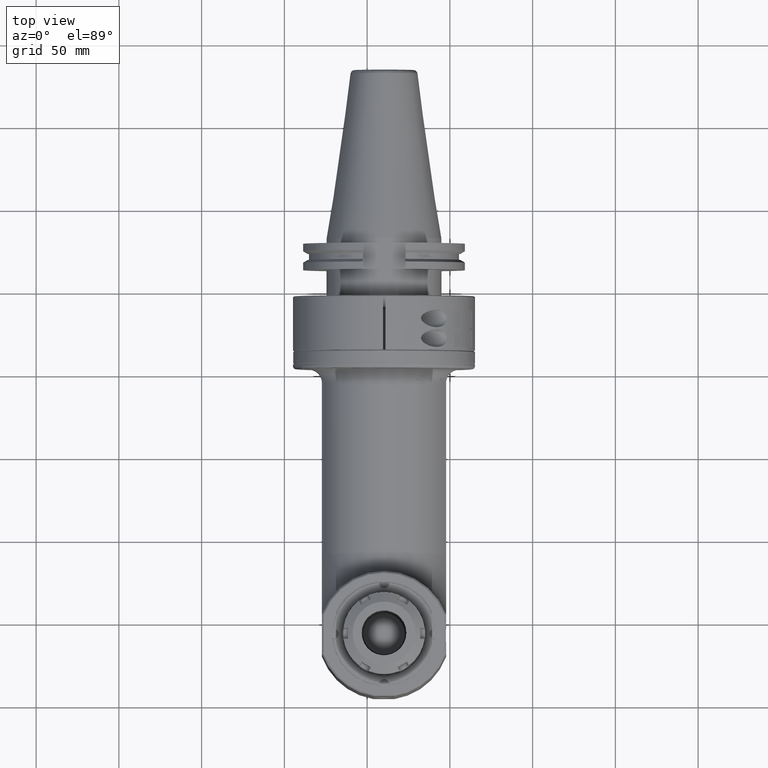
[diagram: clean part render]
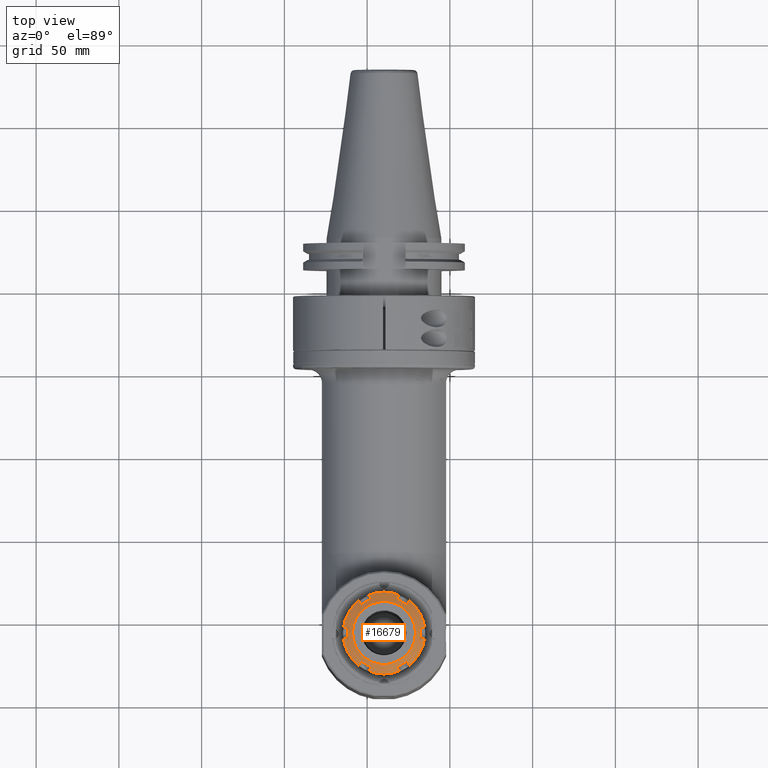
[diagram: same view with one face highlighted and labeled with its STEP entity id]
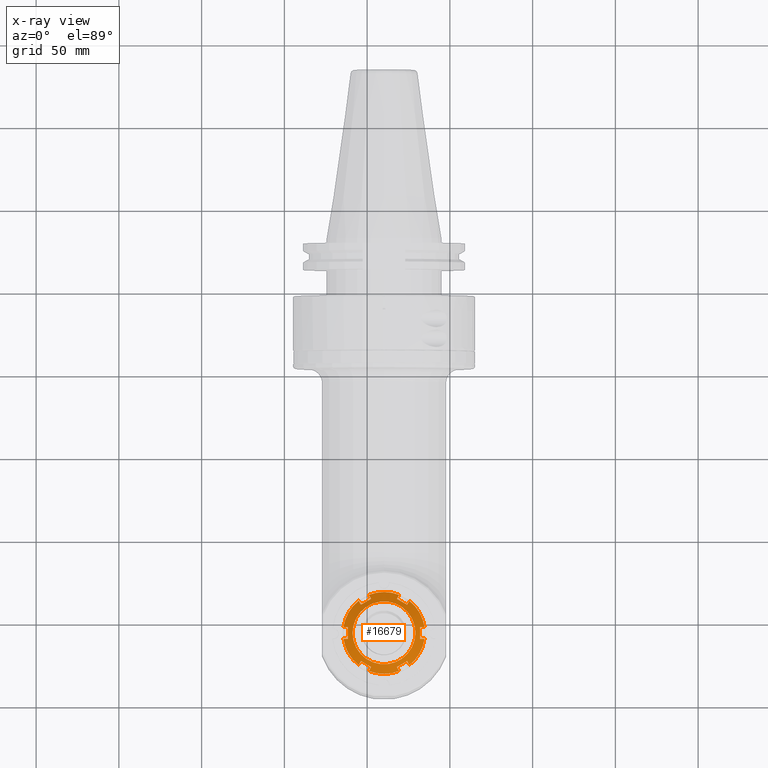
[diagram: x-ray of the same camera — body ghosted, the highlighted face saturated]
A machine part, top view. The second image highlights one B-rep face of the part: STEP entity #16679.
The next image is the same camera in x-ray: the body ghosted, the highlighted face saturated — about 0% of this face is hidden behind the body in this view.
In plain terms, the highlighted conical surface has half-angle 60 deg.
Its self-contained STEP definition (entity closure, byte-faithful):
#451=B_SPLINE_CURVE_WITH_KNOTS('',3,(#30525,#30526,#30527,#30528,#30529,
#30530),.UNSPECIFIED.,.F.,.F.,(4,2,4),(1.75304186991626E-6,0.179968194136324,
0.354706484360109),.UNSPECIFIED.);
#452=B_SPLINE_CURVE_WITH_KNOTS('',3,(#30532,#30533,#30534,#30535,#30536,
#30537),.UNSPECIFIED.,.F.,.F.,(4,2,4),(6.56432397713735E-6,0.15864898755068,
0.312349172508604),.UNSPECIFIED.);
#453=B_SPLINE_CURVE_WITH_KNOTS('',3,(#30546,#30547,#30548,#30549,#30550,
#30551),.UNSPECIFIED.,.F.,.F.,(4,2,4),(9.9999998610467E-7,0.153548746732603,
0.311883060966233),.UNSPECIFIED.);
#454=B_SPLINE_CURVE_WITH_KNOTS('',3,(#30553,#30554,#30555,#30556,#30557,
#30558,#30559,#30560),.UNSPECIFIED.,.F.,.F.,(4,2,2,4),(3.04414007321208E-6,
0.17704807144202,0.353291981256561,0.710275238804246),.UNSPECIFIED.);
#455=B_SPLINE_CURVE_WITH_KNOTS('',3,(#30562,#30563,#30564,#30565,#30566,
#30567),.UNSPECIFIED.,.F.,.F.,(4,2,4),(1.32933202988859E-6,0.158569850594754,
0.312342940884106),.UNSPECIFIED.);
#456=B_SPLINE_CURVE_WITH_KNOTS('',3,(#30576,#30577,#30578,#30579,#30580,
#30581),.UNSPECIFIED.,.F.,.F.,(4,2,4),(9.99999983822135E-7,0.153549233253912,
0.311884353515032),.UNSPECIFIED.);
#457=B_SPLINE_CURVE_WITH_KNOTS('',3,(#30583,#30584,#30585,#30586,#30587,
#30588,#30589,#30590,#30591,#30592),.UNSPECIFIED.,.F.,.F.,(4,2,2,2,4),(3.4389466237264E-6,
0.179256796810815,0.356213165146686,0.532342527806104,0.709279107895124),
 .UNSPECIFIED.);
#458=B_SPLINE_CURVE_WITH_KNOTS('',3,(#30594,#30595,#30596,#30597,#30598,
#30599),.UNSPECIFIED.,.F.,.F.,(4,2,4),(2.07933961347401E-6,0.158569755977248,
0.312342359971536),.UNSPECIFIED.);
#459=B_SPLINE_CURVE_WITH_KNOTS('',3,(#30604,#30605,#30606,#30607,#30608,
#30609),.UNSPECIFIED.,.F.,.F.,(4,2,4),(9.99999987510991E-7,0.15354880513452,
0.311879056823322),.UNSPECIFIED.);
#460=B_SPLINE_CURVE_WITH_KNOTS('',3,(#30611,#30612,#30613,#30614,#30615,
#30616),.UNSPECIFIED.,.F.,.F.,(4,2,4),(4.04179760907711E-6,0.174719437779838,
0.354667402668098),.UNSPECIFIED.);
#461=B_SPLINE_CURVE_WITH_KNOTS('',3,(#30618,#30619,#30620,#30621,#30622,
#30623),.UNSPECIFIED.,.F.,.F.,(4,2,4),(1.75304187045325E-6,0.179968191632304,
0.354706506517712),.UNSPECIFIED.);
#462=B_SPLINE_CURVE_WITH_KNOTS('',3,(#30625,#30626,#30627,#30628,#30629,
#30630),.UNSPECIFIED.,.F.,.F.,(4,2,4),(6.56392251768184E-6,0.158570174676879,
0.31234283858036),.UNSPECIFIED.);
#463=B_SPLINE_CURVE_WITH_KNOTS('',3,(#30639,#30640,#30641,#30642,#30643,
#30644),.UNSPECIFIED.,.F.,.F.,(4,2,4),(9.99999984337555E-7,0.153549254404232,
0.311883060966406),.UNSPECIFIED.);
#464=B_SPLINE_CURVE_WITH_KNOTS('',3,(#30646,#30647,#30648,#30649,#30650,
#30651,#30652,#30653),.UNSPECIFIED.,.F.,.F.,(4,2,2,4),(3.04414007362451E-6,
0.177048071441775,0.353291981255942,0.710275238802672),.UNSPECIFIED.);
#465=B_SPLINE_CURVE_WITH_KNOTS('',3,(#30655,#30656,#30657,#30658,#30659,
#30660),.UNSPECIFIED.,.F.,.F.,(4,2,4),(1.32933205530914E-6,0.158569850592765,
0.312342940875712),.UNSPECIFIED.);
#466=B_SPLINE_CURVE_WITH_KNOTS('',3,(#30669,#30670,#30671,#30672,#30673,
#30674),.UNSPECIFIED.,.F.,.F.,(4,2,4),(9.99999983962507E-7,0.153549233252913,
0.311884353515618),.UNSPECIFIED.);
#467=B_SPLINE_CURVE_WITH_KNOTS('',3,(#30676,#30677,#30678,#30679,#30680,
#30681,#30682,#30683,#30684,#30685),.UNSPECIFIED.,.F.,.F.,(4,2,2,2,4),(3.43894662594961E-6,
0.179256796607292,0.356213164744425,0.532342526658849,0.709279115451498),
 .UNSPECIFIED.);
#468=B_SPLINE_CURVE_WITH_KNOTS('',3,(#30687,#30688,#30689,#30690,#30691,
#30692),.UNSPECIFIED.,.F.,.F.,(4,2,4),(2.07505805616862E-6,0.158542687355554,
0.312340213144117),.UNSPECIFIED.);
#469=B_SPLINE_CURVE_WITH_KNOTS('',3,(#30701,#30702,#30703,#30704,#30705,
#30706),.UNSPECIFIED.,.F.,.F.,(4,2,4),(9.99999986421195E-7,0.153549312787189,
0.311879056789596),.UNSPECIFIED.);
#470=B_SPLINE_CURVE_WITH_KNOTS('',3,(#30707,#30708,#30709,#30710,#30711,
#30712),.UNSPECIFIED.,.F.,.F.,(4,2,4),(4.04179761030404E-6,0.174719437779842,
0.354667402668111),.UNSPECIFIED.);
#615=(
BOUNDED_CURVE()
B_SPLINE_CURVE(2,(#30511,#30512,#30513),.UNSPECIFIED.,.F.,.F.)
B_SPLINE_CURVE_WITH_KNOTS((3,3),(-1.82654082027049,-1.82066003771916),
 .UNSPECIFIED.)
CURVE()
GEOMETRIC_REPRESENTATION_ITEM()
RATIONAL_B_SPLINE_CURVE((1.10514898114972,1.10514190550912,1.10513378545536))
REPRESENTATION_ITEM('')
);
#616=(
BOUNDED_CURVE()
B_SPLINE_CURVE(2,(#30538,#30539,#30540),.UNSPECIFIED.,.F.,.F.)
B_SPLINE_CURVE_WITH_KNOTS((3,3),(1.82066009604865,1.82654082051237),
 .UNSPECIFIED.)
CURVE()
GEOMETRIC_REPRESENTATION_ITEM()
RATIONAL_B_SPLINE_CURVE((1.10513378565989,1.1051419056232,1.10514898119398))
REPRESENTATION_ITEM('')
);
#617=(
BOUNDED_CURVE()
B_SPLINE_CURVE(2,(#30542,#30543,#30544),.UNSPECIFIED.,.F.,.F.)
B_SPLINE_CURVE_WITH_KNOTS((3,3),(1.9062225038737,1.91210328641755),
 .UNSPECIFIED.)
CURVE()
GEOMETRIC_REPRESENTATION_ITEM()
RATIONAL_B_SPLINE_CURVE((1.10514898079948,1.10514190515945,1.10513378510626))
REPRESENTATION_ITEM('')
);
#618=(
BOUNDED_CURVE()
B_SPLINE_CURVE(2,(#30568,#30569,#30570),.UNSPECIFIED.,.F.,.F.)
B_SPLINE_CURVE_WITH_KNOTS((3,3),(1.82066003554759,1.82654081595318),
 .UNSPECIFIED.)
CURVE()
GEOMETRIC_REPRESENTATION_ITEM()
RATIONAL_B_SPLINE_CURVE((1.10513378467658,1.10514190472575,1.10514898036251))
REPRESENTATION_ITEM('')
);
#619=(
BOUNDED_CURVE()
B_SPLINE_CURVE(2,(#30572,#30573,#30574),.UNSPECIFIED.,.F.,.F.)
B_SPLINE_CURVE_WITH_KNOTS((3,3),(1.90622249082826,1.91210327336139),
 .UNSPECIFIED.)
CURVE()
GEOMETRIC_REPRESENTATION_ITEM()
RATIONAL_B_SPLINE_CURVE((1.10514898025349,1.10514190461434,1.10513378456203))
REPRESENTATION_ITEM('')
);
#620=(
BOUNDED_CURVE()
B_SPLINE_CURVE(2,(#30600,#30601,#30602),.UNSPECIFIED.,.F.,.F.)
B_SPLINE_CURVE_WITH_KNOTS((3,3),(1.82066003857861,1.82654081899518),
 .UNSPECIFIED.)
CURVE()
GEOMETRIC_REPRESENTATION_ITEM()
RATIONAL_B_SPLINE_CURVE((1.10513378522961,1.10514190527967,1.10514898091733))
REPRESENTATION_ITEM('')
);
#621=(
BOUNDED_CURVE()
B_SPLINE_CURVE(2,(#30631,#30632,#30633),.UNSPECIFIED.,.F.,.F.)
B_SPLINE_CURVE_WITH_KNOTS((3,3),(1.82066004008948,1.82654082051237),
 .UNSPECIFIED.)
CURVE()
GEOMETRIC_REPRESENTATION_ITEM()
RATIONAL_B_SPLINE_CURVE((1.10513378550536,1.10514190555587,1.10514898119398))
REPRESENTATION_ITEM('')
);
#622=(
BOUNDED_CURVE()
B_SPLINE_CURVE(2,(#30635,#30636,#30637),.UNSPECIFIED.,.F.,.F.)
B_SPLINE_CURVE_WITH_KNOTS((3,3),(1.9062225038737,1.91210328641755),
 .UNSPECIFIED.)
CURVE()
GEOMETRIC_REPRESENTATION_ITEM()
RATIONAL_B_SPLINE_CURVE((1.10514898079948,1.10514190515945,1.10513378510626))
REPRESENTATION_ITEM('')
);
#623=(
BOUNDED_CURVE()
B_SPLINE_CURVE(2,(#30661,#30662,#30663),.UNSPECIFIED.,.F.,.F.)
B_SPLINE_CURVE_WITH_KNOTS((3,3),(1.82066003554759,1.82654081595318),
 .UNSPECIFIED.)
CURVE()
GEOMETRIC_REPRESENTATION_ITEM()
RATIONAL_B_SPLINE_CURVE((1.10513378467658,1.10514190472575,1.10514898036251))
REPRESENTATION_ITEM('')
);
#624=(
BOUNDED_CURVE()
B_SPLINE_CURVE(2,(#30665,#30666,#30667),.UNSPECIFIED.,.F.,.F.)
B_SPLINE_CURVE_WITH_KNOTS((3,3),(1.90622249082826,1.91210327336139),
 .UNSPECIFIED.)
CURVE()
GEOMETRIC_REPRESENTATION_ITEM()
RATIONAL_B_SPLINE_CURVE((1.10514898025349,1.10514190461434,1.10513378456203))
REPRESENTATION_ITEM('')
);
#625=(
BOUNDED_CURVE()
B_SPLINE_CURVE(2,(#30693,#30694,#30695),.UNSPECIFIED.,.F.,.F.)
B_SPLINE_CURVE_WITH_KNOTS((3,3),(1.82066001950823,1.82654081899558),
 .UNSPECIFIED.)
CURVE()
GEOMETRIC_REPRESENTATION_ITEM()
RATIONAL_B_SPLINE_CURVE((1.10513378517697,1.10514190525675,1.10514898091736))
REPRESENTATION_ITEM('')
);
#626=(
BOUNDED_CURVE()
B_SPLINE_CURVE(2,(#30697,#30698,#30699),.UNSPECIFIED.,.F.,.F.)
B_SPLINE_CURVE_WITH_KNOTS((3,3),(-1.82654082027049,-1.82066003771916),
 .UNSPECIFIED.)
CURVE()
GEOMETRIC_REPRESENTATION_ITEM()
RATIONAL_B_SPLINE_CURVE((1.10514898114972,1.10514190550912,1.10513378545536))
REPRESENTATION_ITEM('')
);
#787=CONICAL_SURFACE('',#18424,21.875,1.0471975511966);
#1513=CIRCLE('',#18417,24.75);
#1514=CIRCLE('',#18418,24.75);
#1515=CIRCLE('',#18419,24.75);
#1516=CIRCLE('',#18420,24.75);
#1517=CIRCLE('',#18421,24.75);
#1518=CIRCLE('',#18422,24.75);
#1519=CIRCLE('',#18425,19.);
#2593=FACE_OUTER_BOUND('',#3624,.T.);
#3624=EDGE_LOOP('',(#14944,#14945,#14946,#14947,#14948,#14949,#14950,#14951,
#14952,#14953,#14954,#14955,#14956,#14957,#14958,#14959,#14960,#14961,#14962,
#14963,#14964,#14965,#14966,#14967,#14968,#14969,#14970,#14971,#14972,#14973,
#14974,#14975,#14976,#14977,#14978,#14979,#14980,#14981,#14982,#14983,#14984));
#4968=LINE('',#30714,#6290);
#6290=VECTOR('',#22975,21.875);
#7836=VERTEX_POINT('',#30194);
#7837=VERTEX_POINT('',#30196);
#7840=VERTEX_POINT('',#30231);
#7841=VERTEX_POINT('',#30233);
#7844=VERTEX_POINT('',#30262);
#7845=VERTEX_POINT('',#30264);
#7849=VERTEX_POINT('',#30299);
#7850=VERTEX_POINT('',#30301);
#7853=VERTEX_POINT('',#30336);
#7854=VERTEX_POINT('',#30338);
#7857=VERTEX_POINT('',#30367);
#7858=VERTEX_POINT('',#30369);
#7863=VERTEX_POINT('',#30510);
#7865=VERTEX_POINT('',#30523);
#7866=VERTEX_POINT('',#30524);
#7867=VERTEX_POINT('',#30531);
#7868=VERTEX_POINT('',#30541);
#7869=VERTEX_POINT('',#30545);
#7870=VERTEX_POINT('',#30552);
#7871=VERTEX_POINT('',#30561);
#7872=VERTEX_POINT('',#30571);
#7873=VERTEX_POINT('',#30575);
#7874=VERTEX_POINT('',#30582);
#7875=VERTEX_POINT('',#30593);
#7876=VERTEX_POINT('',#30603);
#7877=VERTEX_POINT('',#30610);
#7878=VERTEX_POINT('',#30617);
#7879=VERTEX_POINT('',#30624);
#7880=VERTEX_POINT('',#30634);
#7881=VERTEX_POINT('',#30638);
#7882=VERTEX_POINT('',#30645);
#7883=VERTEX_POINT('',#30654);
#7884=VERTEX_POINT('',#30664);
#7885=VERTEX_POINT('',#30668);
#7886=VERTEX_POINT('',#30675);
#7887=VERTEX_POINT('',#30686);
#7888=VERTEX_POINT('',#30696);
#7889=VERTEX_POINT('',#30700);
#7890=VERTEX_POINT('',#30713);
#10218=EDGE_CURVE('',#7836,#7837,#1513,.T.);
#10222=EDGE_CURVE('',#7840,#7841,#1514,.T.);
#10226=EDGE_CURVE('',#7844,#7845,#1515,.T.);
#10232=EDGE_CURVE('',#7850,#7849,#1516,.T.);
#10236=EDGE_CURVE('',#7854,#7853,#1517,.T.);
#10240=EDGE_CURVE('',#7858,#7857,#1518,.T.);
#10248=EDGE_CURVE('',#7849,#7863,#615,.T.);
#10251=EDGE_CURVE('',#7865,#7866,#451,.T.);
#10252=EDGE_CURVE('',#7866,#7867,#452,.T.);
#10253=EDGE_CURVE('',#7867,#7858,#616,.T.);
#10254=EDGE_CURVE('',#7857,#7868,#617,.T.);
#10255=EDGE_CURVE('',#7868,#7869,#453,.T.);
#10256=EDGE_CURVE('',#7869,#7870,#454,.T.);
#10257=EDGE_CURVE('',#7870,#7871,#455,.T.);
#10258=EDGE_CURVE('',#7871,#7854,#618,.T.);
#10259=EDGE_CURVE('',#7853,#7872,#619,.T.);
#10260=EDGE_CURVE('',#7872,#7873,#456,.T.);
#10261=EDGE_CURVE('',#7873,#7874,#457,.T.);
#10262=EDGE_CURVE('',#7874,#7875,#458,.T.);
#10263=EDGE_CURVE('',#7875,#7850,#620,.T.);
#10264=EDGE_CURVE('',#7863,#7876,#459,.T.);
#10265=EDGE_CURVE('',#7876,#7877,#460,.T.);
#10266=EDGE_CURVE('',#7877,#7878,#461,.T.);
#10267=EDGE_CURVE('',#7878,#7879,#462,.T.);
#10268=EDGE_CURVE('',#7879,#7845,#621,.T.);
#10269=EDGE_CURVE('',#7844,#7880,#622,.T.);
#10270=EDGE_CURVE('',#7880,#7881,#463,.T.);
#10271=EDGE_CURVE('',#7881,#7882,#464,.T.);
#10272=EDGE_CURVE('',#7882,#7883,#465,.T.);
#10273=EDGE_CURVE('',#7883,#7841,#623,.T.);
#10274=EDGE_CURVE('',#7840,#7884,#624,.T.);
#10275=EDGE_CURVE('',#7884,#7885,#466,.T.);
#10276=EDGE_CURVE('',#7885,#7886,#467,.T.);
#10277=EDGE_CURVE('',#7886,#7887,#468,.T.);
#10278=EDGE_CURVE('',#7887,#7837,#625,.T.);
#10279=EDGE_CURVE('',#7836,#7888,#626,.T.);
#10280=EDGE_CURVE('',#7888,#7889,#469,.T.);
#10281=EDGE_CURVE('',#7889,#7865,#470,.T.);
#10282=EDGE_CURVE('',#7865,#7890,#4968,.T.);
#10283=EDGE_CURVE('',#7890,#7890,#1519,.T.);
#14944=ORIENTED_EDGE('',*,*,#10251,.T.);
#14945=ORIENTED_EDGE('',*,*,#10252,.T.);
#14946=ORIENTED_EDGE('',*,*,#10253,.T.);
#14947=ORIENTED_EDGE('',*,*,#10240,.T.);
#14948=ORIENTED_EDGE('',*,*,#10254,.T.);
#14949=ORIENTED_EDGE('',*,*,#10255,.T.);
#14950=ORIENTED_EDGE('',*,*,#10256,.T.);
#14951=ORIENTED_EDGE('',*,*,#10257,.T.);
#14952=ORIENTED_EDGE('',*,*,#10258,.T.);
#14953=ORIENTED_EDGE('',*,*,#10236,.T.);
#14954=ORIENTED_EDGE('',*,*,#10259,.T.);
#14955=ORIENTED_EDGE('',*,*,#10260,.T.);
#14956=ORIENTED_EDGE('',*,*,#10261,.T.);
#14957=ORIENTED_EDGE('',*,*,#10262,.T.);
#14958=ORIENTED_EDGE('',*,*,#10263,.T.);
#14959=ORIENTED_EDGE('',*,*,#10232,.T.);
#14960=ORIENTED_EDGE('',*,*,#10248,.T.);
#14961=ORIENTED_EDGE('',*,*,#10264,.T.);
#14962=ORIENTED_EDGE('',*,*,#10265,.T.);
#14963=ORIENTED_EDGE('',*,*,#10266,.T.);
#14964=ORIENTED_EDGE('',*,*,#10267,.T.);
#14965=ORIENTED_EDGE('',*,*,#10268,.T.);
#14966=ORIENTED_EDGE('',*,*,#10226,.F.);
#14967=ORIENTED_EDGE('',*,*,#10269,.T.);
#14968=ORIENTED_EDGE('',*,*,#10270,.T.);
#14969=ORIENTED_EDGE('',*,*,#10271,.T.);
#14970=ORIENTED_EDGE('',*,*,#10272,.T.);
#14971=ORIENTED_EDGE('',*,*,#10273,.T.);
#14972=ORIENTED_EDGE('',*,*,#10222,.F.);
#14973=ORIENTED_EDGE('',*,*,#10274,.T.);
#14974=ORIENTED_EDGE('',*,*,#10275,.T.);
#14975=ORIENTED_EDGE('',*,*,#10276,.T.);
#14976=ORIENTED_EDGE('',*,*,#10277,.T.);
#14977=ORIENTED_EDGE('',*,*,#10278,.T.);
#14978=ORIENTED_EDGE('',*,*,#10218,.F.);
#14979=ORIENTED_EDGE('',*,*,#10279,.T.);
#14980=ORIENTED_EDGE('',*,*,#10280,.T.);
#14981=ORIENTED_EDGE('',*,*,#10281,.T.);
#14982=ORIENTED_EDGE('',*,*,#10282,.T.);
#14983=ORIENTED_EDGE('',*,*,#10283,.F.);
#14984=ORIENTED_EDGE('',*,*,#10282,.F.);
#16679=ADVANCED_FACE('',(#2593),#787,.T.);
#18417=AXIS2_PLACEMENT_3D('',#30197,#22943,#22944);
#18418=AXIS2_PLACEMENT_3D('',#30234,#22947,#22948);
#18419=AXIS2_PLACEMENT_3D('',#30265,#22951,#22952);
#18420=AXIS2_PLACEMENT_3D('',#30302,#22956,#22957);
#18421=AXIS2_PLACEMENT_3D('',#30339,#22960,#22961);
#18422=AXIS2_PLACEMENT_3D('',#30370,#22964,#22965);
#18424=AXIS2_PLACEMENT_3D('',#30522,#22973,#22974);
#18425=AXIS2_PLACEMENT_3D('',#30715,#22976,#22977);
#22943=DIRECTION('center_axis',(0.,0.,-1.));
#22944=DIRECTION('ref_axis',(-0.989529626064201,0.1443298969072,0.));
#22947=DIRECTION('center_axis',(0.,0.,-1.));
#22948=DIRECTION('ref_axis',(-0.369771455784902,0.929122742422504,0.));
#22951=DIRECTION('center_axis',(0.,0.,-1.));
#22952=DIRECTION('ref_axis',(0.619758170279316,0.784792845515321,0.));
#22956=DIRECTION('center_axis',(0.,0.,1.));
#22957=DIRECTION('ref_axis',(0.619758170279316,-0.784792845515321,0.));
#22960=DIRECTION('center_axis',(0.,0.,1.));
#22961=DIRECTION('ref_axis',(-0.369771455784902,-0.929122742422504,0.));
#22964=DIRECTION('center_axis',(0.,0.,1.));
#22965=DIRECTION('ref_axis',(-0.989529626064201,-0.1443298969072,0.));
#22973=DIRECTION('center_axis',(0.,0.,-1.));
#22974=DIRECTION('ref_axis',(1.,0.,0.));
#22975=DIRECTION('',(0.866025403784439,-1.06057523872491E-16,0.5));
#22976=DIRECTION('center_axis',(0.,0.,1.));
#22977=DIRECTION('ref_axis',(-1.,0.,0.));
#30194=CARTESIAN_POINT('',(-24.49085824509,3.572164948454,95.18023595216));
#30196=CARTESIAN_POINT('',(-15.33901471441,19.4236229265,95.18023595216));
#30197=CARTESIAN_POINT('Origin',(0.,0.,95.18023595216));
#30231=CARTESIAN_POINT('',(-9.151843530675,22.99578787496,95.18023595216));
#30233=CARTESIAN_POINT('',(9.151843530675,22.99578787496,95.18023595216));
#30234=CARTESIAN_POINT('Origin',(0.,0.,95.18023595216));
#30262=CARTESIAN_POINT('',(15.33901471441,19.4236229265,95.18023595216));
#30264=CARTESIAN_POINT('',(24.49085824509,3.572164948454,95.18023595216));
#30265=CARTESIAN_POINT('Origin',(0.,0.,95.18023595216));
#30299=CARTESIAN_POINT('',(24.49085824509,-3.572164948454,95.18023595216));
#30301=CARTESIAN_POINT('',(15.33901471441,-19.4236229265,95.18023595216));
#30302=CARTESIAN_POINT('Origin',(0.,0.,95.18023595216));
#30336=CARTESIAN_POINT('',(9.151843530675,-22.99578787496,95.18023595216));
#30338=CARTESIAN_POINT('',(-9.151843530675,-22.99578787496,95.18023595216));
#30339=CARTESIAN_POINT('Origin',(0.,0.,95.18023595216));
#30367=CARTESIAN_POINT('',(-15.33901471441,-19.4236229265,95.18023595216));
#30369=CARTESIAN_POINT('',(-24.49085824509,-3.572164948454,95.18023595216));
#30370=CARTESIAN_POINT('Origin',(0.,0.,95.18023595216));
#30510=CARTESIAN_POINT('',(24.4594052314,-3.535791480735,95.20122462781));
#30511=CARTESIAN_POINT('Ctrl Pts',(24.4908582450911,-3.57216494845232,95.1802359521587));
#30512=CARTESIAN_POINT('Ctrl Pts',(24.4751201800046,-3.55396484819911,95.1907437849392));
#30513=CARTESIAN_POINT('Ctrl Pts',(24.4594052314032,-3.53579148073306,95.2012246278114));
#30522=CARTESIAN_POINT('Origin',(0.,0.,96.84011797608));
#30523=CARTESIAN_POINT('',(-21.7499808090299,2.83624674011763E-10,96.9122934891984));
#30524=CARTESIAN_POINT('',(-21.7467883487033,-3.5401520525268,96.7488653067945));
#30525=CARTESIAN_POINT('Ctrl Pts',(-21.7499691532698,1.22659368773093E-9,
96.9123045690967));
#30526=CARTESIAN_POINT('Ctrl Pts',(-21.7498829063403,-0.599888107540533,
96.9123543638042));
#30527=CARTESIAN_POINT('Ctrl Pts',(-21.7496297887462,-1.19875346758221,
96.8981694232021));
#30528=CARTESIAN_POINT('Ctrl Pts',(-21.7485986930385,-2.37973510867007,
96.8425881983953));
#30529=CARTESIAN_POINT('Ctrl Pts',(-21.7478323110972,-2.96019549916113,
96.8020703767762));
#30530=CARTESIAN_POINT('Ctrl Pts',(-21.7467883497624,-3.54015205243213,
96.7488653057416));
#30531=CARTESIAN_POINT('',(-24.45940554186,-3.535791839759,95.20122442076));
#30532=CARTESIAN_POINT('Ctrl Pts',(-21.7467883485353,-3.54015205177398,
96.7488653065019));
#30533=CARTESIAN_POINT('Ctrl Pts',(-22.2062689703506,-3.53931428133019,
96.4871084463067));
#30534=CARTESIAN_POINT('Ctrl Pts',(-22.6658663327613,-3.53853969922772,
96.2250607916538));
#30535=CARTESIAN_POINT('Ctrl Pts',(-23.5700194850244,-3.53710591793132,
95.7091764975994));
#30536=CARTESIAN_POINT('Ctrl Pts',(-24.0152268374829,-3.53644286094187,
95.4549791473299));
#30537=CARTESIAN_POINT('Ctrl Pts',(-24.4594055418585,-3.53579183976262,
95.2012244207574));
#30538=CARTESIAN_POINT('Ctrl Pts',(-24.4594055418574,-3.53579183976026,
95.2012244207582));
#30539=CARTESIAN_POINT('Ctrl Pts',(-24.4751203354586,-3.55396502797811,
95.1907436811467));
#30540=CARTESIAN_POINT('Ctrl Pts',(-24.4908582450884,-3.57216494845534,
95.18023595216));
#30541=CARTESIAN_POINT('',(-15.2917878605,-19.41457055148,95.20122462781));
#30542=CARTESIAN_POINT('Ctrl Pts',(-15.3390147144112,-19.4236229264996,
95.1802359521625));
#30543=CARTESIAN_POINT('Ctrl Pts',(-15.3153839326988,-19.4190934124553,
95.1907437849424));
#30544=CARTESIAN_POINT('Ctrl Pts',(-15.2917878605016,-19.4145705514805,
95.2012246278139));
#30545=CARTESIAN_POINT('',(-13.9392386496171,-17.0631647559966,96.7488851485347));
#30546=CARTESIAN_POINT('Ctrl Pts',(-15.2917878605012,-19.4145705514816,
95.2012246278136));
#30547=CARTESIAN_POINT('Ctrl Pts',(-15.0701440267436,-19.0293698789196,
95.4551146435003));
#30548=CARTESIAN_POINT('Ctrl Pts',(-14.8480000863269,-18.6432779438227,
95.709443235205));
#30549=CARTESIAN_POINT('Ctrl Pts',(-14.3971707170572,-17.8595499964186,
96.2253213367826));
#30550=CARTESIAN_POINT('Ctrl Pts',(-14.1681432359714,-17.4613138487407,
96.4872542549471));
#30551=CARTESIAN_POINT('Ctrl Pts',(-13.9392386489354,-17.0631647562105,
96.7488851482638));
#30552=CARTESIAN_POINT('',(-7.80750911435989,-20.6033071787982,96.7488917031527));
#30553=CARTESIAN_POINT('Ctrl Pts',(-13.9392386500316,-17.0631647568899,
96.7488851475596));
#30554=CARTESIAN_POINT('Ctrl Pts',(-13.4308218504342,-17.3579238361189,
96.802797512302));
#30555=CARTESIAN_POINT('Ctrl Pts',(-12.9218826879926,-17.6526918981227,
96.8436595804959));
#30556=CARTESIAN_POINT('Ctrl Pts',(-11.9036497699783,-18.2418283575146,
96.8982722193695));
#30557=CARTESIAN_POINT('Ctrl Pts',(-11.3964368796023,-18.5350317728459,
96.9120342522739));
#30558=CARTESIAN_POINT('Ctrl Pts',(-9.85823238621408,-19.4231530288199,
96.9127230800921));
#30559=CARTESIAN_POINT('Ctrl Pts',(-8.83554254091466,-20.0121876862511,
96.8577068746052));
#30560=CARTESIAN_POINT('Ctrl Pts',(-7.80750911373805,-20.6033071779138,
96.7488917042232));
#30561=CARTESIAN_POINT('',(-9.167617365192,-22.95036204866,95.20122462022));
#30562=CARTESIAN_POINT('Ctrl Pts',(-7.80750911378255,-20.6033071793288,
96.7488917034502));
#30563=CARTESIAN_POINT('Ctrl Pts',(-8.03786753098259,-21.0006250379232,
96.48725679451));
#30564=CARTESIAN_POINT('Ctrl Pts',(-8.26823968937357,-21.3980925540807,
96.2253200574462));
#30565=CARTESIAN_POINT('Ctrl Pts',(-8.72155655730646,-22.1803919566835,
95.7094381835018));
#30566=CARTESIAN_POINT('Ctrl Pts',(-8.94484687339047,-22.5658147896324,
95.4551131716591));
#30567=CARTESIAN_POINT('Ctrl Pts',(-9.16761736519417,-22.9503620486587,
95.20122462022));
#30568=CARTESIAN_POINT('Ctrl Pts',(-9.16761736519032,-22.9503620486596,
95.2012246202204));
#30569=CARTESIAN_POINT('Ctrl Pts',(-9.15973624444315,-22.9730582688931,
95.1907437811341));
#30570=CARTESIAN_POINT('Ctrl Pts',(-9.15184353067408,-22.9957878749593,
95.1802359521591));
#30571=CARTESIAN_POINT('',(9.1676173709,-22.95036203222,95.20122462781));
#30572=CARTESIAN_POINT('Ctrl Pts',(9.15184353067365,-22.9957878749592,95.1802359521592));
#30573=CARTESIAN_POINT('Ctrl Pts',(9.15973624730113,-22.9730582606613,95.1907437849397));
#30574=CARTESIAN_POINT('Ctrl Pts',(9.1676173708983,-22.9503620322203,95.2012246278119));
#30575=CARTESIAN_POINT('',(7.80750918201864,-20.6033074259327,96.7488915559041));
#30576=CARTESIAN_POINT('Ctrl Pts',(9.16761737089871,-22.9503620322215,95.2012246278112));
#30577=CARTESIAN_POINT('Ctrl Pts',(8.94484430590721,-22.5658100646733,95.4551162548751));
#30578=CARTESIAN_POINT('Ctrl Pts',(8.72155378112484,-22.1803868567735,95.7094415109088));
#30579=CARTESIAN_POINT('Ctrl Pts',(8.26823682177924,-21.3980874465783,96.2253234043306));
#30580=CARTESIAN_POINT('Ctrl Pts',(8.037866028198,-21.0006224552662,96.4872584963494));
#30581=CARTESIAN_POINT('Ctrl Pts',(7.80750918146364,-20.6033074264428,96.74889155619));
#30582=CARTESIAN_POINT('',(13.9392386272885,-17.0631648483471,96.7488851154052));
#30583=CARTESIAN_POINT('Ctrl Pts',(7.80750918142088,-20.6033074250826,96.7488915569331));
#30584=CARTESIAN_POINT('Ctrl Pts',(8.32332844994917,-20.3067115916389,96.8034897329258));
#30585=CARTESIAN_POINT('Ctrl Pts',(8.83897943110631,-20.0099275359954,96.8446706103615));
#30586=CARTESIAN_POINT('Ctrl Pts',(9.86680518163501,-19.417831358659,96.8990415158963));
#30587=CARTESIAN_POINT('Ctrl Pts',(10.3771123352882,-19.1235641737231,96.9124890256704));
#30588=CARTESIAN_POINT('Ctrl Pts',(11.3963403582268,-18.5350873540809,96.9120362519681));
#30589=CARTESIAN_POINT('Ctrl Pts',(11.903562271579,-18.241878965775,96.8982754972918));
#30590=CARTESIAN_POINT('Ctrl Pts',(12.9218297064478,-17.6527227343872,96.8436637652941));
#30591=CARTESIAN_POINT('Ctrl Pts',(13.4307952255546,-17.3579394467931,96.8028002563473));
#30592=CARTESIAN_POINT('Ctrl Pts',(13.9392386277093,-17.0631648492541,96.7488851144151));
#30593=CARTESIAN_POINT('',(15.29178787759,-19.41457055476,95.20122462022));
#30594=CARTESIAN_POINT('Ctrl Pts',(13.9392386265964,-17.0631648485642,96.7488851151301));
#30595=CARTESIAN_POINT('Ctrl Pts',(14.1681448248573,-17.4613166217059,96.4872524345889));
#30596=CARTESIAN_POINT('Ctrl Pts',(14.3971737555925,-17.8595551189437,96.2253179337053));
#30597=CARTESIAN_POINT('Ctrl Pts',(14.8480031117403,-18.6432828925548,95.7094399113998));
#30598=CARTESIAN_POINT('Ctrl Pts',(15.0701468333132,-19.0293744620866,95.4551115621424));
#30599=CARTESIAN_POINT('Ctrl Pts',(15.2917878775916,-19.41457055476,95.2012246202213));
#30600=CARTESIAN_POINT('Ctrl Pts',(15.2917878775906,-19.4145705547603,95.2012246202215));
#30601=CARTESIAN_POINT('Ctrl Pts',(15.3153839412552,-19.4190934140996,95.1907437811357));
#30602=CARTESIAN_POINT('Ctrl Pts',(15.3390147144099,-19.4236229265036,95.1802359521612));
#30603=CARTESIAN_POINT('',(21.7467883116707,-3.54015233851306,96.7488653013667));
#30604=CARTESIAN_POINT('Ctrl Pts',(24.4594052314013,-3.53579148073478,95.2012246278123));
#30605=CARTESIAN_POINT('Ctrl Pts',(24.0149895774953,-3.53644262663852,95.455114740066));
#30606=CARTESIAN_POINT('Ctrl Pts',(23.5695520127772,-3.53710629874858,95.7094434290764));
#30607=CARTESIAN_POINT('Ctrl Pts',(22.6654206224145,-3.53854056754472,96.2253149081148));
#30608=CARTESIAN_POINT('Ctrl Pts',(22.2060360581158,-3.53931500350751,96.487241104683));
#30609=CARTESIAN_POINT('Ctrl Pts',(21.7467883115031,-3.54015233776216,96.7488653010749));
#30610=CARTESIAN_POINT('',(21.7499773944723,5.9395396433628E-10,96.9122969107415));
#30611=CARTESIAN_POINT('Ctrl Pts',(21.746788312727,-3.54015233841862,96.7488653003165));
#30612=CARTESIAN_POINT('Ctrl Pts',(21.747832008487,-2.96020402622935,96.8020697625248));
#30613=CARTESIAN_POINT('Ctrl Pts',(21.7485980618998,-2.37975203840527,96.8425873706307));
#30614=CARTESIAN_POINT('Ctrl Pts',(21.7496293543767,-1.19877015099988,96.8981692767374));
#30615=CARTESIAN_POINT('Ctrl Pts',(21.7498830110372,-0.599896640296583,
96.9123543033724));
#30616=CARTESIAN_POINT('Ctrl Pts',(21.7499705653562,2.16728038293645E-9,
96.9123037538282));
#30617=CARTESIAN_POINT('',(21.746788348306,3.54015227306017,96.7488652865624));
#30618=CARTESIAN_POINT('Ctrl Pts',(21.7499691532698,-1.22659188361851E-9,
96.9123045690967));
#30619=CARTESIAN_POINT('Ctrl Pts',(21.7498829063413,0.599888099193799,96.9123543638036));
#30620=CARTESIAN_POINT('Ctrl Pts',(21.7496297887531,1.19875345092997,96.898169423597));
#30621=CARTESIAN_POINT('Ctrl Pts',(21.7485986929957,2.37973516582784,96.8425881960829));
#30622=CARTESIAN_POINT('Ctrl Pts',(21.7478323109163,2.96019563803271,96.8020703672637));
#30623=CARTESIAN_POINT('Ctrl Pts',(21.7467883493637,3.54015227296561,96.7488652855109));
#30624=CARTESIAN_POINT('',(24.45940524278,3.535791493896,95.20122462022));
#30625=CARTESIAN_POINT('Ctrl Pts',(21.7467883481381,3.5401522723083,96.7488652862703));
#30626=CARTESIAN_POINT('Ctrl Pts',(22.2060392295636,3.53931499308271,96.4872392982659));
#30627=CARTESIAN_POINT('Ctrl Pts',(22.6654265617528,3.53854063775839,96.2253115142588));
#30628=CARTESIAN_POINT('Ctrl Pts',(23.5695578049084,3.53710644447934,95.70944010887));
#30629=CARTESIAN_POINT('Ctrl Pts',(24.0149949468748,3.53644276562238,95.4551116604473));
#30630=CARTESIAN_POINT('Ctrl Pts',(24.4594052427814,3.53579149389644,95.2012246202224));
#30631=CARTESIAN_POINT('Ctrl Pts',(24.4594052427809,3.53579149389678,95.2012246202227));
#30632=CARTESIAN_POINT('Ctrl Pts',(24.4751201857005,3.55396485479215,95.1907437811357));
#30633=CARTESIAN_POINT('Ctrl Pts',(24.4908582450884,3.57216494845534,95.18023595216));
#30634=CARTESIAN_POINT('',(15.2917878605,19.41457055148,95.20122462781));
#30635=CARTESIAN_POINT('Ctrl Pts',(15.3390147144112,19.4236229264996,95.1802359521625));
#30636=CARTESIAN_POINT('Ctrl Pts',(15.3153839326988,19.4190934124553,95.1907437849424));
#30637=CARTESIAN_POINT('Ctrl Pts',(15.2917878605016,19.4145705514805,95.2012246278139));
#30638=CARTESIAN_POINT('',(13.9392386496171,17.0631647559966,96.7488851485348));
#30639=CARTESIAN_POINT('Ctrl Pts',(15.2917878605012,19.4145705514817,95.2012246278136));
#30640=CARTESIAN_POINT('Ctrl Pts',(15.0701425894917,19.0293673810815,95.4551162898529));
#30641=CARTESIAN_POINT('Ctrl Pts',(14.8480015318393,18.6432804567213,95.7094415811242));
#30642=CARTESIAN_POINT('Ctrl Pts',(14.3971707170556,17.8595499964158,96.2253213367844));
#30643=CARTESIAN_POINT('Ctrl Pts',(14.1681432359707,17.4613138487396,96.4872542549478));
#30644=CARTESIAN_POINT('Ctrl Pts',(13.9392386489354,17.0631647562105,96.7488851482638));
#30645=CARTESIAN_POINT('',(7.80750911436009,20.6033071787986,96.7488917031525));
#30646=CARTESIAN_POINT('Ctrl Pts',(13.9392386500316,17.0631647568899,96.7488851475596));
#30647=CARTESIAN_POINT('Ctrl Pts',(13.4308218504349,17.3579238361184,96.8027975123019));
#30648=CARTESIAN_POINT('Ctrl Pts',(12.921882687993,17.6526918981225,96.8436595804959));
#30649=CARTESIAN_POINT('Ctrl Pts',(11.9036497699783,18.2418283575145,96.8982722193695));
#30650=CARTESIAN_POINT('Ctrl Pts',(11.3964368796023,18.5350317728459,96.9120342522739));
#30651=CARTESIAN_POINT('Ctrl Pts',(9.85823238621463,19.4231530288195,96.9127230800921));
#30652=CARTESIAN_POINT('Ctrl Pts',(8.83554254091447,20.012187686251,96.8577068746053));
#30653=CARTESIAN_POINT('Ctrl Pts',(7.80750911373826,20.6033071779142,96.748891704223));
#30654=CARTESIAN_POINT('',(9.167617365192,22.95036204866,95.20122462022));
#30655=CARTESIAN_POINT('Ctrl Pts',(7.80750911378275,20.6033071793292,96.7488917034499));
#30656=CARTESIAN_POINT('Ctrl Pts',(8.03786753097986,21.0006250379185,96.4872567945131));
#30657=CARTESIAN_POINT('Ctrl Pts',(8.26823968936665,21.3980925540687,96.225320057454));
#30658=CARTESIAN_POINT('Ctrl Pts',(8.72155655730671,22.1803919566839,95.7094381835016));
#30659=CARTESIAN_POINT('Ctrl Pts',(8.94484687339101,22.5658147896333,95.4551131716585));
#30660=CARTESIAN_POINT('Ctrl Pts',(9.16761736519418,22.9503620486587,95.20122462022));
#30661=CARTESIAN_POINT('Ctrl Pts',(9.16761736519032,22.9503620486596,95.2012246202204));
#30662=CARTESIAN_POINT('Ctrl Pts',(9.15973624444315,22.9730582688931,95.1907437811341));
#30663=CARTESIAN_POINT('Ctrl Pts',(9.15184353067408,22.9957878749593,95.1802359521591));
#30664=CARTESIAN_POINT('',(-9.1676173709,22.95036203222,95.20122462781));
#30665=CARTESIAN_POINT('Ctrl Pts',(-9.15184353067365,22.9957878749592,95.1802359521592));
#30666=CARTESIAN_POINT('Ctrl Pts',(-9.15973624730113,22.9730582606613,95.1907437849397));
#30667=CARTESIAN_POINT('Ctrl Pts',(-9.1676173708983,22.9503620322203,95.2012246278119));
#30668=CARTESIAN_POINT('',(-7.80750918201863,20.6033074259327,96.7488915559041));
#30669=CARTESIAN_POINT('Ctrl Pts',(-9.16761737089871,22.9503620322215,95.2012246278112));
#30670=CARTESIAN_POINT('Ctrl Pts',(-8.94484430590866,22.5658100646758,95.4551162548734));
#30671=CARTESIAN_POINT('Ctrl Pts',(-8.72155378112558,22.1803868567748,95.709441510908));
#30672=CARTESIAN_POINT('Ctrl Pts',(-8.26823682177469,21.3980874465705,96.2253234043358));
#30673=CARTESIAN_POINT('Ctrl Pts',(-8.03786602819616,21.0006224552631,96.4872584963515));
#30674=CARTESIAN_POINT('Ctrl Pts',(-7.80750918146364,20.6033074264428,96.74889155619));
#30675=CARTESIAN_POINT('',(-13.9392386924623,17.0631648105635,96.7488851084922));
#30676=CARTESIAN_POINT('Ctrl Pts',(-7.80750918142087,20.6033074250826,96.7488915569331));
#30677=CARTESIAN_POINT('Ctrl Pts',(-8.32332844936349,20.3067115919756,96.8034897328638));
#30678=CARTESIAN_POINT('Ctrl Pts',(-8.83897942993635,20.0099275366684,96.8446706102683));
#30679=CARTESIAN_POINT('Ctrl Pts',(-9.86680517930153,19.417831360003,96.8990415158045));
#30680=CARTESIAN_POINT('Ctrl Pts',(-10.377112332379,19.1235641753998,96.9124890256101));
#30681=CARTESIAN_POINT('Ctrl Pts',(-11.3963403525884,18.5350873573361,96.9120362520334));
#30682=CARTESIAN_POINT('Ctrl Pts',(-11.9035622638035,18.2418789702683,96.8982754975348));
#30683=CARTESIAN_POINT('Ctrl Pts',(-12.9218297216501,17.6527227255942,96.8436637646549));
#30684=CARTESIAN_POINT('Ctrl Pts',(-13.4307952657449,17.3579394235162,96.8028002532058));
#30685=CARTESIAN_POINT('Ctrl Pts',(-13.9392386928818,17.0631648114676,96.7488851075052));
#30686=CARTESIAN_POINT('',(-15.29178772455,19.41457052543,95.2012246882));
#30687=CARTESIAN_POINT('Ctrl Pts',(-13.9392386917723,17.06316481078,96.7488851082179));
#30688=CARTESIAN_POINT('Ctrl Pts',(-14.1681058410865,17.4612486145348,96.4872970814461));
#30689=CARTESIAN_POINT('Ctrl Pts',(-14.3970989861028,17.8594249746305,96.225403504888));
#30690=CARTESIAN_POINT('Ctrl Pts',(-14.8479250154139,18.6431472703387,95.7095292708563));
#30691=CARTESIAN_POINT('Ctrl Pts',(-15.0701068132488,19.0293052078917,95.4551572697005));
#30692=CARTESIAN_POINT('Ctrl Pts',(-15.2917877245547,19.4145705254254,95.2012246881971));
#30693=CARTESIAN_POINT('Ctrl Pts',(-15.2917877245502,19.4145705254257,95.2012246881986));
#30694=CARTESIAN_POINT('Ctrl Pts',(-15.3153838646225,19.4190933994107,95.1907438152118));
#30695=CARTESIAN_POINT('Ctrl Pts',(-15.3390147144099,19.4236229265036,95.1802359521613));
#30696=CARTESIAN_POINT('',(-24.4594052314,3.535791480735,95.20122462781));
#30697=CARTESIAN_POINT('Ctrl Pts',(-24.4908582450911,3.57216494845232,95.1802359521587));
#30698=CARTESIAN_POINT('Ctrl Pts',(-24.4751201800046,3.55396484819911,95.1907437849392));
#30699=CARTESIAN_POINT('Ctrl Pts',(-24.4594052314032,3.53579148073306,95.2012246278114));
#30700=CARTESIAN_POINT('',(-21.7467883116707,3.54015233851306,96.7488653013666));
#30701=CARTESIAN_POINT('Ctrl Pts',(-24.4594052314013,3.53579148073478,95.2012246278123));
#30702=CARTESIAN_POINT('Ctrl Pts',(-24.0149866957142,3.53644263086083,95.455116386398));
#30703=CARTESIAN_POINT('Ctrl Pts',(-23.5695549117845,3.53710629414974,95.7094417749859));
#30704=CARTESIAN_POINT('Ctrl Pts',(-22.6654206224188,3.53854056754472,96.2253149081124));
#30705=CARTESIAN_POINT('Ctrl Pts',(-22.2060360581195,3.5393150035075,96.4872411046809));
#30706=CARTESIAN_POINT('Ctrl Pts',(-21.7467883115031,3.54015233776216,96.7488653010748));
#30707=CARTESIAN_POINT('Ctrl Pts',(-21.746788312727,3.54015233841862,96.7488653003165));
#30708=CARTESIAN_POINT('Ctrl Pts',(-21.747832008487,2.96020402622934,96.8020697625248));
#30709=CARTESIAN_POINT('Ctrl Pts',(-21.7485980618998,2.37975203840527,96.8425873706307));
#30710=CARTESIAN_POINT('Ctrl Pts',(-21.7496293543767,1.19877015099987,96.8981692767374));
#30711=CARTESIAN_POINT('Ctrl Pts',(-21.7498830110372,0.599896640296581,
96.9123543033724));
#30712=CARTESIAN_POINT('Ctrl Pts',(-21.7499705653562,-2.1672788563798E-9,
96.9123037538282));
#30713=CARTESIAN_POINT('',(-19.,0.,98.5));
#30714=CARTESIAN_POINT('',(-21.875,2.67891487313484E-15,96.84011797608));
#30715=CARTESIAN_POINT('Origin',(0.,0.,98.5));